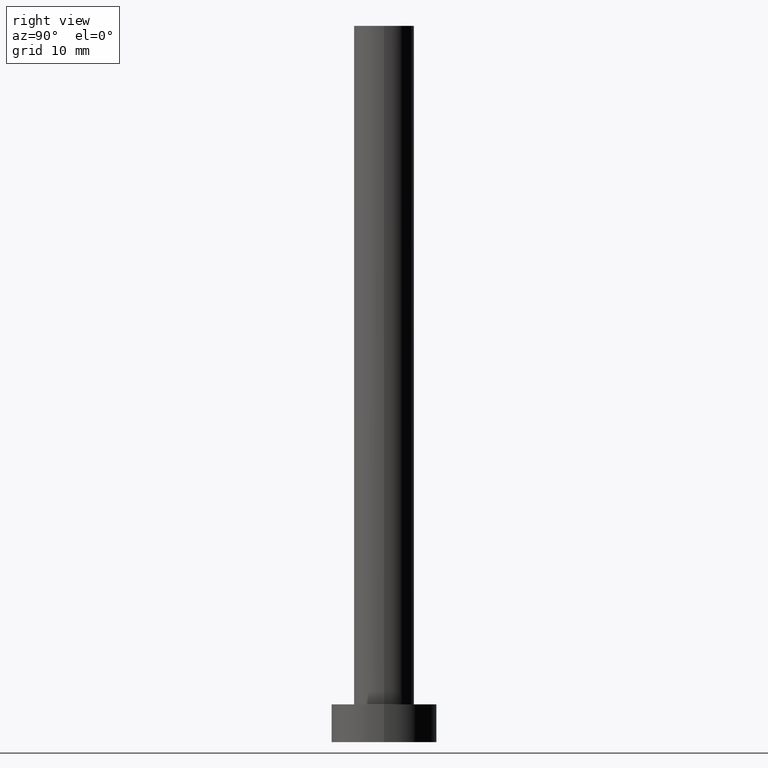
[diagram: clean part render]
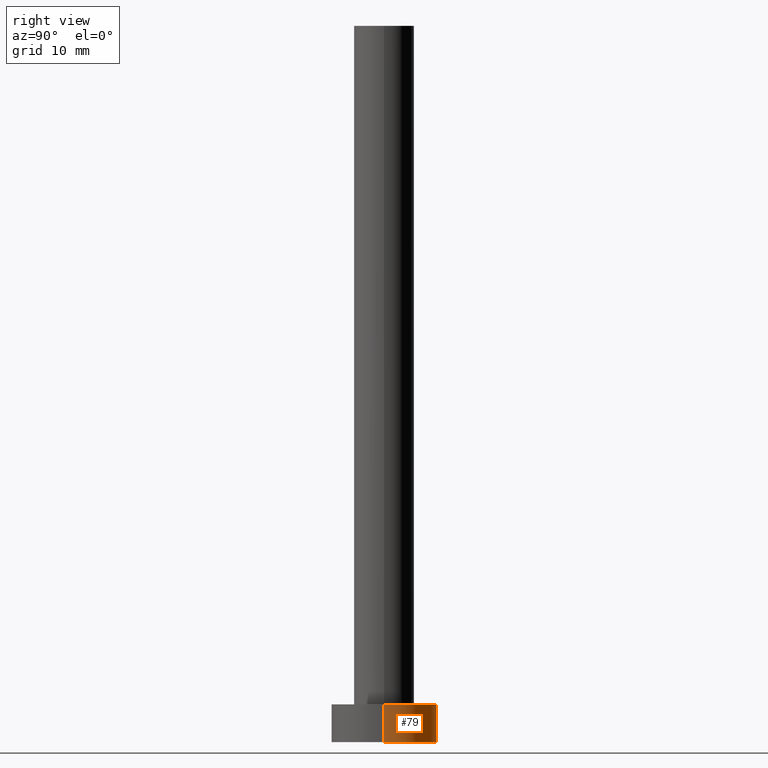
[diagram: same view with one face highlighted and labeled with its STEP entity id]
A machine part, right view. The second image highlights one B-rep face of the part: STEP entity #79.
In plain terms, the highlighted cylindrical surface (partial cylindrical patch) has radius 7 mm, axis along (-0, -0, -1).
Its self-contained STEP definition (entity closure, byte-faithful):
#1 = LINE ( 'NONE', #160, #156 ) ;
#6 = DIRECTION ( 'NONE',  ( 0.000000000000000000, 0.000000000000000000, 1.000000000000000000 ) ) ;
#14 = DIRECTION ( 'NONE',  ( -0.000000000000000000, -0.000000000000000000, -1.000000000000000000 ) ) ;
#22 = EDGE_LOOP ( 'NONE', ( #39, #62, #213, #161 ) ) ;
#26 = VERTEX_POINT ( 'NONE', #71 ) ;
#27 = CARTESIAN_POINT ( 'NONE',  ( 0.000000000000000000, 0.000000000000000000, 5.000000000000000000 ) ) ;
#37 = EDGE_CURVE ( 'NONE', #114, #26, #89, .T. ) ;
#39 = ORIENTED_EDGE ( 'NONE', *, *, #138, .F. ) ;
#44 = VERTEX_POINT ( 'NONE', #72 ) ;
#55 = EDGE_CURVE ( 'NONE', #84, #26, #181, .T. ) ;
#62 = ORIENTED_EDGE ( 'NONE', *, *, #121, .T. ) ;
#71 = CARTESIAN_POINT ( 'NONE',  ( -7.000000000000000000, 0.000000000000000000, 0.000000000000000000 ) ) ;
#72 = CARTESIAN_POINT ( 'NONE',  ( 7.000000000000000000, 8.572527594031473190E-16, 5.000000000000000000 ) ) ;
#73 = CARTESIAN_POINT ( 'NONE',  ( 0.000000000000000000, 0.000000000000000000, 5.000000000000000000 ) ) ;
#79 = ADVANCED_FACE ( 'NONE', ( #226 ), #179, .T. ) ;
#84 = VERTEX_POINT ( 'NONE', #92 ) ;
#89 = LINE ( 'NONE', #152, #222 ) ;
#92 = CARTESIAN_POINT ( 'NONE',  ( 7.000000000000000000, 8.572527594031473190E-16, 0.000000000000000000 ) ) ;
#113 = DIRECTION ( 'NONE',  ( -0.000000000000000000, -0.000000000000000000, -1.000000000000000000 ) ) ;
#114 = VERTEX_POINT ( 'NONE', #224 ) ;
#121 = EDGE_CURVE ( 'NONE', #44, #84, #1, .T. ) ;
#125 = DIRECTION ( 'NONE',  ( 0.000000000000000000, 0.000000000000000000, 1.000000000000000000 ) ) ;
#129 = AXIS2_PLACEMENT_3D ( 'NONE', #27, #6, #217 ) ;
#138 = EDGE_CURVE ( 'NONE', #44, #114, #180, .T. ) ;
#152 = CARTESIAN_POINT ( 'NONE',  ( -7.000000000000000000, 0.000000000000000000, 5.000000000000000000 ) ) ;
#156 = VECTOR ( 'NONE', #113, 1000.000000000000000 ) ;
#157 = DIRECTION ( 'NONE',  ( -1.000000000000000000, 0.000000000000000000, 0.000000000000000000 ) ) ;
#160 = CARTESIAN_POINT ( 'NONE',  ( 7.000000000000000000, 8.572527594031473190E-16, 5.000000000000000000 ) ) ;
#161 = ORIENTED_EDGE ( 'NONE', *, *, #37, .F. ) ;
#175 = DIRECTION ( 'NONE',  ( -0.000000000000000000, -0.000000000000000000, -1.000000000000000000 ) ) ;
#178 = AXIS2_PLACEMENT_3D ( 'NONE', #221, #125, #249 ) ;
#179 = CYLINDRICAL_SURFACE ( 'NONE', #237, 7.000000000000000000 ) ;
#180 = CIRCLE ( 'NONE', #129, 7.000000000000000000 ) ;
#181 = CIRCLE ( 'NONE', #178, 7.000000000000000000 ) ;
#213 = ORIENTED_EDGE ( 'NONE', *, *, #55, .T. ) ;
#217 = DIRECTION ( 'NONE',  ( 1.000000000000000000, 0.000000000000000000, 0.000000000000000000 ) ) ;
#221 = CARTESIAN_POINT ( 'NONE',  ( 0.000000000000000000, 0.000000000000000000, 0.000000000000000000 ) ) ;
#222 = VECTOR ( 'NONE', #14, 1000.000000000000000 ) ;
#224 = CARTESIAN_POINT ( 'NONE',  ( -7.000000000000000000, 0.000000000000000000, 5.000000000000000000 ) ) ;
#226 = FACE_OUTER_BOUND ( 'NONE', #22, .T. ) ;
#237 = AXIS2_PLACEMENT_3D ( 'NONE', #73, #175, #157 ) ;
#249 = DIRECTION ( 'NONE',  ( 1.000000000000000000, 0.000000000000000000, 0.000000000000000000 ) ) ;